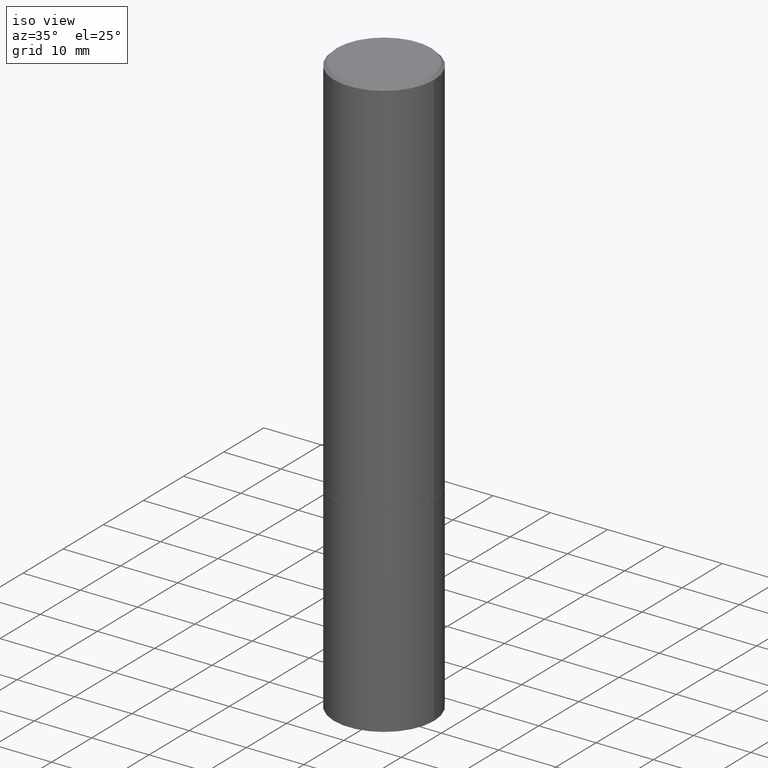
[diagram: clean part render]
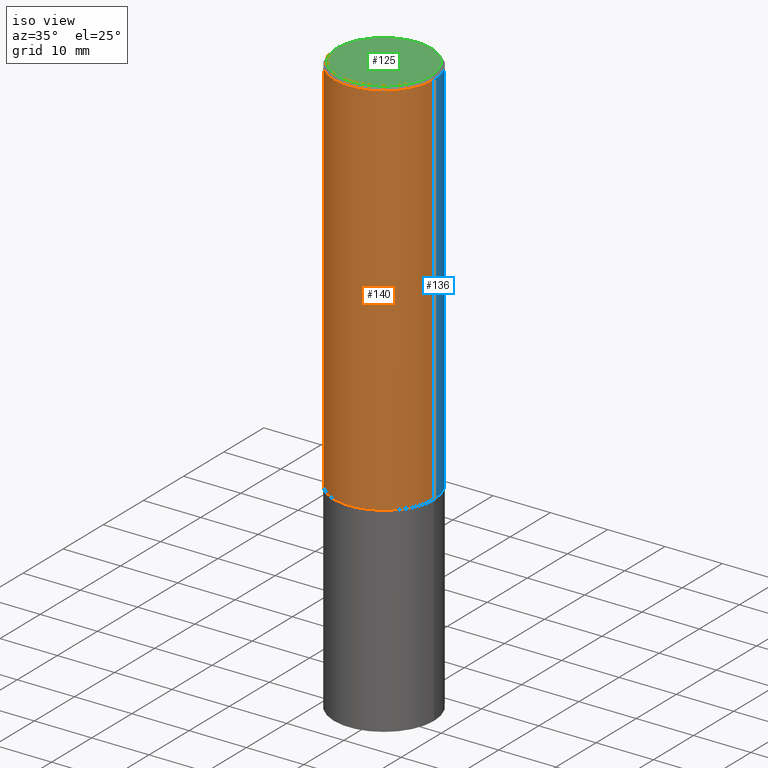
[diagram: same view with three faces highlighted in distinct colors, each labeled with its STEP entity id]
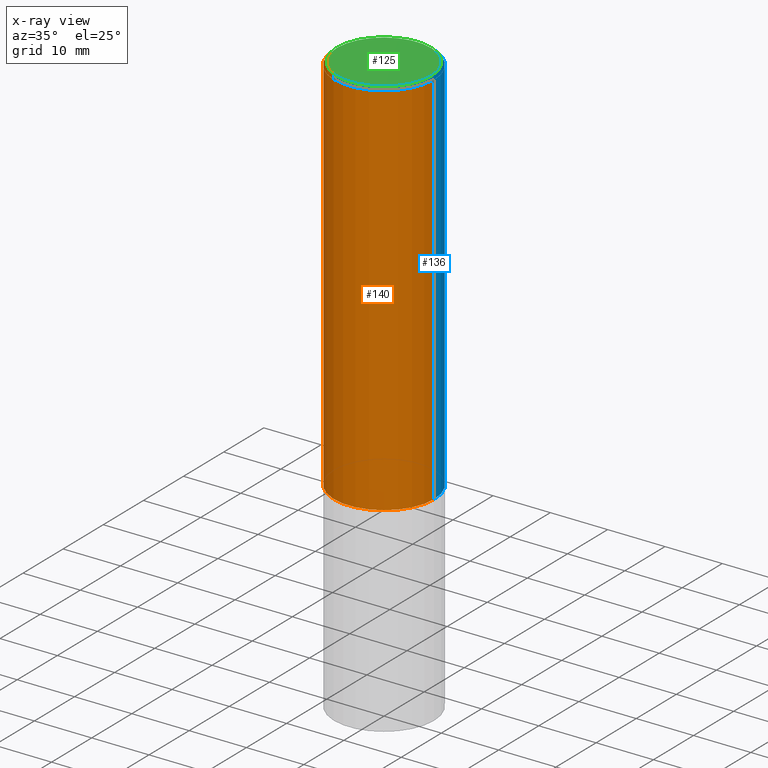
[diagram: x-ray of the same camera — body ghosted, the three highlighted faces saturated]
A machine part, iso view with three faces highlighted in distinct colors.
The next image is the same camera in x-ray (body ghosted, the three faces saturated) — at least one of them is partly hidden behind the body in this view.
Their STEP definitions:

[orange] entity #140 — the highlighted cylindrical surface (partial cylindrical patch) has radius 8.7312 mm, axis along (-0, 0, 1).
#3 = FACE_OUTER_BOUND ( 'NONE', #85, .T. ) ;
#22 = DIRECTION ( 'NONE',  ( -2.445468806185136597E-29, 3.491481338843145583E-15, 1.000000000000000000 ) ) ;
#25 = CARTESIAN_POINT ( 'NONE',  ( -0.3437500000000000000, -2.173247675775292485E-15, -2.624000000000000110 ) ) ;
#26 = CARTESIAN_POINT ( 'NONE',  ( 6.416910147429799085E-29, -9.161647033124413605E-15, -2.624000000000000110 ) ) ;
#32 = DIRECTION ( 'NONE',  ( 1.000000000000000000, -6.982962677686263555E-15, 0.000000000000000000 ) ) ;
#48 = CIRCLE ( 'NONE', #222, 0.3437499999999997224 ) ;
#66 = CARTESIAN_POINT ( 'NONE',  ( 0.3437499999999998335, -2.400393420454653393E-15, 1.676185766679852018E-29 ) ) ;
#67 = CARTESIAN_POINT ( 'NONE',  ( -0.3437499999999998335, 2.442490654175343206E-15, -1.690883937275123074E-29 ) ) ;
#85 = EDGE_LOOP ( 'NONE', ( #89, #169, #134, #386 ) ) ;
#89 = ORIENTED_EDGE ( 'NONE', *, *, #145, .F. ) ;
#95 = DIRECTION ( 'NONE',  ( -2.445468806185136597E-29, 3.491481338843145583E-15, 1.000000000000000000 ) ) ;
#96 = EDGE_CURVE ( 'NONE', #237, #212, #143, .T. ) ;
#134 = ORIENTED_EDGE ( 'NONE', *, *, #265, .T. ) ;
#140 = ADVANCED_FACE ( 'NONE', ( #3 ), #152, .T. ) ;
#143 = CIRCLE ( 'NONE', #287, 0.3437500000000000000 ) ;
#145 = EDGE_CURVE ( 'NONE', #237, #380, #219, .T. ) ;
#152 = CYLINDRICAL_SURFACE ( 'NONE', #230, 0.3437499999999998335 ) ;
#169 = ORIENTED_EDGE ( 'NONE', *, *, #96, .T. ) ;
#182 = CARTESIAN_POINT ( 'NONE',  ( -0.3437499999999997224, 2.330563793677788911E-15, -0.02000000000000009409 ) ) ;
#183 = DIRECTION ( 'NONE',  ( -2.445468806185136877E-29, 3.491481338843145188E-15, 1.000000000000000000 ) ) ;
#212 = VERTEX_POINT ( 'NONE', #248 ) ;
#219 = LINE ( 'NONE', #67, #388 ) ;
#222 = AXIS2_PLACEMENT_3D ( 'NONE', #299, #22, #272 ) ;
#226 = CARTESIAN_POINT ( 'NONE',  ( 0.000000000000000000, 0.000000000000000000, 0.000000000000000000 ) ) ;
#230 = AXIS2_PLACEMENT_3D ( 'NONE', #226, #337, #343 ) ;
#237 = VERTEX_POINT ( 'NONE', #25 ) ;
#242 = VERTEX_POINT ( 'NONE', #244 ) ;
#244 = CARTESIAN_POINT ( 'NONE',  ( 0.3437499999999997224, -2.428125813510825301E-15, -0.02000000000000009409 ) ) ;
#248 = CARTESIAN_POINT ( 'NONE',  ( 0.3437500000000000000, -1.156204045357906700E-14, -2.624000000000000110 ) ) ;
#265 = EDGE_CURVE ( 'NONE', #212, #242, #358, .T. ) ;
#272 = DIRECTION ( 'NONE',  ( 1.000000000000000000, -6.982962677686266711E-15, 0.000000000000000000 ) ) ;
#287 = AXIS2_PLACEMENT_3D ( 'NONE', #26, #95, #32 ) ;
#299 = CARTESIAN_POINT ( 'NONE',  ( 4.890937612370296805E-31, -6.982962677686323656E-17, -0.02000000000000009409 ) ) ;
#312 = DIRECTION ( 'NONE',  ( -2.445468806185136877E-29, 3.491481338843145188E-15, 1.000000000000000000 ) ) ;
#337 = DIRECTION ( 'NONE',  ( -2.445468806185136597E-29, 3.491481338843145583E-15, 1.000000000000000000 ) ) ;
#343 = DIRECTION ( 'NONE',  ( 1.000000000000000000, -6.982962677686267499E-15, 4.876176775795935232E-29 ) ) ;
#358 = LINE ( 'NONE', #66, #382 ) ;
#379 = EDGE_CURVE ( 'NONE', #380, #242, #48, .T. ) ;
#380 = VERTEX_POINT ( 'NONE', #182 ) ;
#382 = VECTOR ( 'NONE', #312, 39.37007874015748143 ) ;
#386 = ORIENTED_EDGE ( 'NONE', *, *, #379, .F. ) ;
#388 = VECTOR ( 'NONE', #183, 39.37007874015748143 ) ;

[blue] entity #136 — the highlighted cylindrical surface (partial cylindrical patch) has radius 8.7312 mm, axis along (-0, 0, 1).
#11 = ORIENTED_EDGE ( 'NONE', *, *, #103, .T. ) ;
#25 = CARTESIAN_POINT ( 'NONE',  ( -0.3437500000000000000, -2.173247675775292485E-15, -2.624000000000000110 ) ) ;
#55 = CIRCLE ( 'NONE', #99, 0.3437499999999997224 ) ;
#62 = DIRECTION ( 'NONE',  ( -2.445468806185136597E-29, 3.491481338843145583E-15, 1.000000000000000000 ) ) ;
#66 = CARTESIAN_POINT ( 'NONE',  ( 0.3437499999999998335, -2.400393420454653393E-15, 1.676185766679852018E-29 ) ) ;
#67 = CARTESIAN_POINT ( 'NONE',  ( -0.3437499999999998335, 2.442490654175343206E-15, -1.690883937275123074E-29 ) ) ;
#93 = FACE_OUTER_BOUND ( 'NONE', #100, .T. ) ;
#99 = AXIS2_PLACEMENT_3D ( 'NONE', #338, #62, #185 ) ;
#100 = EDGE_LOOP ( 'NONE', ( #11, #138, #162, #271 ) ) ;
#103 = EDGE_CURVE ( 'NONE', #212, #237, #348, .T. ) ;
#130 = DIRECTION ( 'NONE',  ( 1.000000000000000000, -6.982962677686263555E-15, 0.000000000000000000 ) ) ;
#136 = ADVANCED_FACE ( 'NONE', ( #93 ), #300, .T. ) ;
#138 = ORIENTED_EDGE ( 'NONE', *, *, #145, .T. ) ;
#145 = EDGE_CURVE ( 'NONE', #237, #380, #219, .T. ) ;
#162 = ORIENTED_EDGE ( 'NONE', *, *, #360, .F. ) ;
#173 = AXIS2_PLACEMENT_3D ( 'NONE', #365, #369, #130 ) ;
#182 = CARTESIAN_POINT ( 'NONE',  ( -0.3437499999999997224, 2.330563793677788911E-15, -0.02000000000000009409 ) ) ;
#183 = DIRECTION ( 'NONE',  ( -2.445468806185136877E-29, 3.491481338843145188E-15, 1.000000000000000000 ) ) ;
#185 = DIRECTION ( 'NONE',  ( 1.000000000000000000, -6.982962677686266711E-15, 0.000000000000000000 ) ) ;
#211 = AXIS2_PLACEMENT_3D ( 'NONE', #283, #223, #256 ) ;
#212 = VERTEX_POINT ( 'NONE', #248 ) ;
#219 = LINE ( 'NONE', #67, #388 ) ;
#223 = DIRECTION ( 'NONE',  ( -2.445468806185136597E-29, 3.491481338843145583E-15, 1.000000000000000000 ) ) ;
#237 = VERTEX_POINT ( 'NONE', #25 ) ;
#242 = VERTEX_POINT ( 'NONE', #244 ) ;
#244 = CARTESIAN_POINT ( 'NONE',  ( 0.3437499999999997224, -2.428125813510825301E-15, -0.02000000000000009409 ) ) ;
#248 = CARTESIAN_POINT ( 'NONE',  ( 0.3437500000000000000, -1.156204045357906700E-14, -2.624000000000000110 ) ) ;
#256 = DIRECTION ( 'NONE',  ( 1.000000000000000000, -6.982962677686267499E-15, 4.876176775795935232E-29 ) ) ;
#265 = EDGE_CURVE ( 'NONE', #212, #242, #358, .T. ) ;
#271 = ORIENTED_EDGE ( 'NONE', *, *, #265, .F. ) ;
#283 = CARTESIAN_POINT ( 'NONE',  ( 0.000000000000000000, 0.000000000000000000, 0.000000000000000000 ) ) ;
#300 = CYLINDRICAL_SURFACE ( 'NONE', #211, 0.3437499999999998335 ) ;
#312 = DIRECTION ( 'NONE',  ( -2.445468806185136877E-29, 3.491481338843145188E-15, 1.000000000000000000 ) ) ;
#338 = CARTESIAN_POINT ( 'NONE',  ( 4.890937612370296805E-31, -6.982962677686323656E-17, -0.02000000000000009409 ) ) ;
#348 = CIRCLE ( 'NONE', #173, 0.3437500000000000000 ) ;
#358 = LINE ( 'NONE', #66, #382 ) ;
#360 = EDGE_CURVE ( 'NONE', #242, #380, #55, .T. ) ;
#365 = CARTESIAN_POINT ( 'NONE',  ( 6.416910147429799085E-29, -9.161647033124413605E-15, -2.624000000000000110 ) ) ;
#369 = DIRECTION ( 'NONE',  ( -2.445468806185136597E-29, 3.491481338843145583E-15, 1.000000000000000000 ) ) ;
#380 = VERTEX_POINT ( 'NONE', #182 ) ;
#382 = VECTOR ( 'NONE', #312, 39.37007874015748143 ) ;
#388 = VECTOR ( 'NONE', #183, 39.37007874015748143 ) ;

[green] entity #125 — the highlighted planar face has unit normal (0, -0, -1).
#23 = EDGE_LOOP ( 'NONE', ( #305, #321 ) ) ;
#31 = CARTESIAN_POINT ( 'NONE',  ( -1.043851414335219820E-46, 1.490343170380447200E-32, 4.268512490100411279E-18 ) ) ;
#52 = DIRECTION ( 'NONE',  ( -2.445468806185136597E-29, 3.491481338843145583E-15, 1.000000000000000000 ) ) ;
#65 = AXIS2_PLACEMENT_3D ( 'NONE', #191, #52, #79 ) ;
#79 = DIRECTION ( 'NONE',  ( 1.000000000000000000, -6.982962677686266711E-15, 4.876157412475881652E-29 ) ) ;
#97 = CARTESIAN_POINT ( 'NONE',  ( 2.260734166900926402E-15, 0.3237499999999996492, -1.128232827205417129E-15 ) ) ;
#119 = FACE_OUTER_BOUND ( 'NONE', #23, .T. ) ;
#125 = ADVANCED_FACE ( 'NONE', ( #119 ), #304, .F. ) ;
#191 = CARTESIAN_POINT ( 'NONE',  ( -1.043851414335219820E-46, 1.490343170380447200E-32, 4.268512490100411279E-18 ) ) ;
#215 = VERTEX_POINT ( 'NONE', #363 ) ;
#217 = DIRECTION ( 'NONE',  ( -1.000000000000000000, 6.982962677686265922E-15, -4.876176775795935793E-29 ) ) ;
#225 = EDGE_CURVE ( 'NONE', #215, #228, #308, .T. ) ;
#228 = VERTEX_POINT ( 'NONE', #327 ) ;
#246 = DIRECTION ( 'NONE',  ( 1.000000000000000000, -6.982962677686266711E-15, 4.876157412475881652E-29 ) ) ;
#251 = DIRECTION ( 'NONE',  ( -2.445468806185136597E-29, 3.491481338843145583E-15, 1.000000000000000000 ) ) ;
#264 = EDGE_CURVE ( 'NONE', #228, #215, #326, .T. ) ;
#304 = PLANE ( 'NONE',  #306 ) ;
#305 = ORIENTED_EDGE ( 'NONE', *, *, #264, .T. ) ;
#306 = AXIS2_PLACEMENT_3D ( 'NONE', #97, #313, #217 ) ;
#308 = CIRCLE ( 'NONE', #65, 0.3237499999999996492 ) ;
#313 = DIRECTION ( 'NONE',  ( 2.438088387897960049E-29, -3.491481338843145188E-15, -1.000000000000000000 ) ) ;
#321 = ORIENTED_EDGE ( 'NONE', *, *, #225, .T. ) ;
#326 = CIRCLE ( 'NONE', #355, 0.3237499999999996492 ) ;
#327 = CARTESIAN_POINT ( 'NONE',  ( -0.3237499999999996492, 2.295648980289358051E-15, 4.268512490084478446E-18 ) ) ;
#355 = AXIS2_PLACEMENT_3D ( 'NONE', #31, #251, #246 ) ;
#363 = CARTESIAN_POINT ( 'NONE',  ( 0.3237499999999996492, -2.324606020144678320E-15, 4.268512490116445031E-18 ) ) ;